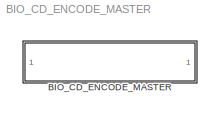
MODEL BIO_CD_ENCODE_MASTER
KIND library
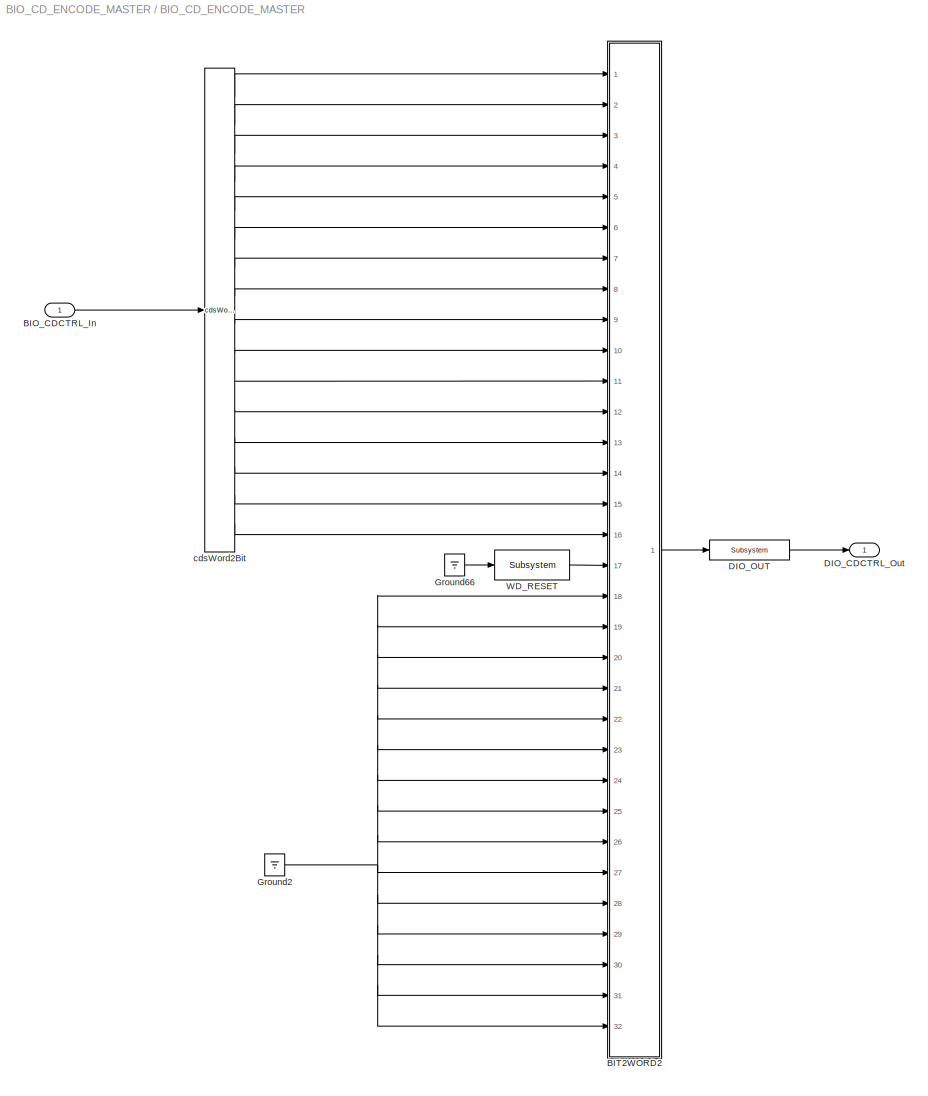
BLOCK [SubSystem] BIO_CD_ENCODE_MASTER
  Ports = [1, 1]
  RequestExecContextInheritance = off
  SID = 130
BLOCK [Inport] BIO_CD_ENCODE_MASTER/BIO_CDCTRL_In
  IconDisplay = Port number
  SID = 131
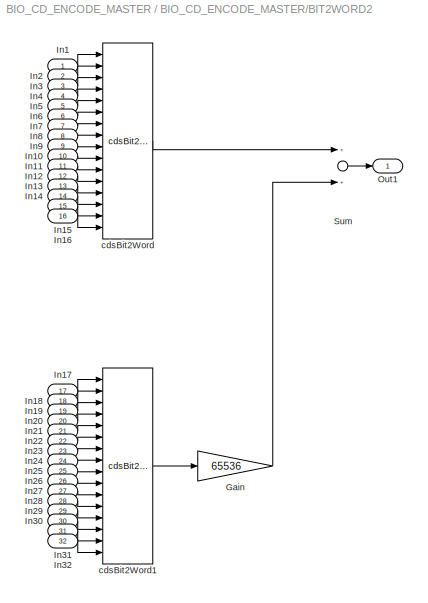
BLOCK [SubSystem] BIO_CD_ENCODE_MASTER/BIT2WORD2
  Ports = [32, 1]
  RequestExecContextInheritance = off
  SID = 1
BLOCK [Gain] BIO_CD_ENCODE_MASTER/BIT2WORD2/Gain
  Gain = 65536
  OutDataTypeStr = Inherit: Inherit via internal rule
  ParamDataTypeStr = Inherit: Inherit via internal rule
  SID = 34
  SaturateOnIntegerOverflow = off
BLOCK [Inport] BIO_CD_ENCODE_MASTER/BIT2WORD2/In1
  IconDisplay = Port number
  SID = 2
BLOCK [Inport] BIO_CD_ENCODE_MASTER/BIT2WORD2/In10
  IconDisplay = Port number
  Port = 10
  SID = 11
BLOCK [Inport] BIO_CD_ENCODE_MASTER/BIT2WORD2/In11
  IconDisplay = Port number
  Port = 11
  SID = 12
BLOCK [Inport] BIO_CD_ENCODE_MASTER/BIT2WORD2/In12
  IconDisplay = Port number
  Port = 12
  SID = 13
BLOCK [Inport] BIO_CD_ENCODE_MASTER/BIT2WORD2/In13
  IconDisplay = Port number
  Port = 13
  SID = 14
BLOCK [Inport] BIO_CD_ENCODE_MASTER/BIT2WORD2/In14
  IconDisplay = Port number
  Port = 14
  SID = 15
BLOCK [Inport] BIO_CD_ENCODE_MASTER/BIT2WORD2/In15
  IconDisplay = Port number
  Port = 15
  SID = 16
BLOCK [Inport] BIO_CD_ENCODE_MASTER/BIT2WORD2/In16
  IconDisplay = Port number
  Port = 16
  SID = 17
BLOCK [Inport] BIO_CD_ENCODE_MASTER/BIT2WORD2/In17
  IconDisplay = Port number
  Port = 17
  SID = 18
BLOCK [Inport] BIO_CD_ENCODE_MASTER/BIT2WORD2/In18
  IconDisplay = Port number
  Port = 18
  SID = 19
BLOCK [Inport] BIO_CD_ENCODE_MASTER/BIT2WORD2/In19
  IconDisplay = Port number
  Port = 19
  SID = 20
BLOCK [Inport] BIO_CD_ENCODE_MASTER/BIT2WORD2/In2
  IconDisplay = Port number
  Port = 2
  SID = 3
BLOCK [Inport] BIO_CD_ENCODE_MASTER/BIT2WORD2/In20
  IconDisplay = Port number
  Port = 20
  SID = 21
BLOCK [Inport] BIO_CD_ENCODE_MASTER/BIT2WORD2/In21
  IconDisplay = Port number
  Port = 21
  SID = 22
BLOCK [Inport] BIO_CD_ENCODE_MASTER/BIT2WORD2/In22
  IconDisplay = Port number
  Port = 22
  SID = 23
BLOCK [Inport] BIO_CD_ENCODE_MASTER/BIT2WORD2/In23
  IconDisplay = Port number
  Port = 23
  SID = 24
BLOCK [Inport] BIO_CD_ENCODE_MASTER/BIT2WORD2/In24
  IconDisplay = Port number
  Port = 24
  SID = 25
BLOCK [Inport] BIO_CD_ENCODE_MASTER/BIT2WORD2/In25
  IconDisplay = Port number
  Port = 25
  SID = 26
BLOCK [Inport] BIO_CD_ENCODE_MASTER/BIT2WORD2/In26
  IconDisplay = Port number
  Port = 26
  SID = 27
BLOCK [Inport] BIO_CD_ENCODE_MASTER/BIT2WORD2/In27
  IconDisplay = Port number
  Port = 27
  SID = 28
BLOCK [Inport] BIO_CD_ENCODE_MASTER/BIT2WORD2/In28
  IconDisplay = Port number
  Port = 28
  SID = 29
BLOCK [Inport] BIO_CD_ENCODE_MASTER/BIT2WORD2/In29
  IconDisplay = Port number
  Port = 29
  SID = 30
BLOCK [Inport] BIO_CD_ENCODE_MASTER/BIT2WORD2/In3
  IconDisplay = Port number
  Port = 3
  SID = 4
BLOCK [Inport] BIO_CD_ENCODE_MASTER/BIT2WORD2/In30
  IconDisplay = Port number
  Port = 30
  SID = 31
BLOCK [Inport] BIO_CD_ENCODE_MASTER/BIT2WORD2/In31
  IconDisplay = Port number
  Port = 31
  SID = 32
BLOCK [Inport] BIO_CD_ENCODE_MASTER/BIT2WORD2/In32
  IconDisplay = Port number
  Port = 32
  SID = 33
BLOCK [Inport] BIO_CD_ENCODE_MASTER/BIT2WORD2/In4
  IconDisplay = Port number
  Port = 4
  SID = 5
BLOCK [Inport] BIO_CD_ENCODE_MASTER/BIT2WORD2/In5
  IconDisplay = Port number
  Port = 5
  SID = 6
BLOCK [Inport] BIO_CD_ENCODE_MASTER/BIT2WORD2/In6
  IconDisplay = Port number
  Port = 6
  SID = 7
BLOCK [Inport] BIO_CD_ENCODE_MASTER/BIT2WORD2/In7
  IconDisplay = Port number
  Port = 7
  SID = 8
BLOCK [Inport] BIO_CD_ENCODE_MASTER/BIT2WORD2/In8
  IconDisplay = Port number
  Port = 8
  SID = 9
BLOCK [Inport] BIO_CD_ENCODE_MASTER/BIT2WORD2/In9
  IconDisplay = Port number
  Port = 9
  SID = 10
BLOCK [Outport] BIO_CD_ENCODE_MASTER/BIT2WORD2/Out1
  IconDisplay = Port number
  SID = 38
BLOCK [Sum] BIO_CD_ENCODE_MASTER/BIT2WORD2/Sum
  InputSameDT = off
  OutDataTypeStr = Inherit: Inherit via internal rule
  Ports = [2, 1]
  SID = 35
  SaturateOnIntegerOverflow = off
BLOCK [Reference] BIO_CD_ENCODE_MASTER/BIT2WORD2/cdsBit2Word  REF=cdsBit2Word/cdsBit2Word
  AttributesFormatString = %<Tag>
  Description = Forms single 16 bit integer from 16 0/1 inputs.
  Ports = [16, 1]
  SID = 36
  SourceBlock = cdsBit2Word/cdsBit2Word
  SourceType = SubSystem
  Tag = cdsBit2Word
BLOCK [Reference] BIO_CD_ENCODE_MASTER/BIT2WORD2/cdsBit2Word1  REF=cdsBit2Word/cdsBit2Word
  AttributesFormatString = %<Tag>
  Description = Forms single 16 bit integer from 16 0/1 inputs.
  Ports = [16, 1]
  SID = 37
  SourceBlock = cdsBit2Word/cdsBit2Word
  SourceType = SubSystem
  Tag = cdsBit2Word
BLOCK [Outport] BIO_CD_ENCODE_MASTER/DIO_CDCTRL_Out
  IconDisplay = Port number
  SID = 132
BLOCK [Reference] BIO_CD_ENCODE_MASTER/DIO_OUT  REF=cdsEpicsOut/Subsystem
  AttributesFormatString = %<Tag>
  Description = Purpose:                                          \nOutput a FE signal to an EPICS channel.           \n                                                  \nOperation:                                        \nTakes input value and passes it to EPICS record.  \n                                                  \nUsage:                                            \nName the part with the desired EPICS...<+14ch>
  Ports = [1, 1]
  SID = 39
  SourceBlock = cdsEpicsOut/Subsystem
  SourceType = SubSystem
  Tag = cdsEpicsOutput
BLOCK [Ground] BIO_CD_ENCODE_MASTER/Ground2
  SID = 40
BLOCK [Ground] BIO_CD_ENCODE_MASTER/Ground66
  SID = 41
BLOCK [Reference] BIO_CD_ENCODE_MASTER/WD_RESET  REF=cdsEpicsBinIn/Subsystem
  AttributesFormatString = %<Tag>
  Description = Purpose:                                                                            \nCreate an EPICS binary (0 or 1) input channel to the FE realtime controls.          \n                                                                                    \nOperation:                                                                          \nOutputs value from an EPICS ai record. Value is binary i...<+252ch>
  Ports = [1, 1]
  SID = 42
  SourceBlock = cdsEpicsBinIn/Subsystem
  SourceType = SubSystem
  Tag = cdsEpicsBinIn
BLOCK [Reference] BIO_CD_ENCODE_MASTER/cdsWord2Bit  REF=cdsWord2Bit/cdsWord2Bit
  AttributesFormatString = cdsWord2Bit
  Description = Generate 16 0/1 outputs from single 16-bit integer input
  Ports = [1, 16]
  SID = 43
  SourceBlock = cdsWord2Bit/cdsWord2Bit
  SourceType = SubSystem
  Tag = cdsWord2Bit
LINE BIO_CD_ENCODE_MASTER/BIO_CDCTRL_In:1 -> BIO_CD_ENCODE_MASTER/cdsWord2Bit:1
LINE BIO_CD_ENCODE_MASTER/BIT2WORD2/Gain:1 -> BIO_CD_ENCODE_MASTER/BIT2WORD2/Sum:2
LINE BIO_CD_ENCODE_MASTER/BIT2WORD2/In10:1 -> BIO_CD_ENCODE_MASTER/BIT2WORD2/cdsBit2Word:10
LINE BIO_CD_ENCODE_MASTER/BIT2WORD2/In11:1 -> BIO_CD_ENCODE_MASTER/BIT2WORD2/cdsBit2Word:11
LINE BIO_CD_ENCODE_MASTER/BIT2WORD2/In12:1 -> BIO_CD_ENCODE_MASTER/BIT2WORD2/cdsBit2Word:12
LINE BIO_CD_ENCODE_MASTER/BIT2WORD2/In13:1 -> BIO_CD_ENCODE_MASTER/BIT2WORD2/cdsBit2Word:13
LINE BIO_CD_ENCODE_MASTER/BIT2WORD2/In14:1 -> BIO_CD_ENCODE_MASTER/BIT2WORD2/cdsBit2Word:14
LINE BIO_CD_ENCODE_MASTER/BIT2WORD2/In15:1 -> BIO_CD_ENCODE_MASTER/BIT2WORD2/cdsBit2Word:15
LINE BIO_CD_ENCODE_MASTER/BIT2WORD2/In16:1 -> BIO_CD_ENCODE_MASTER/BIT2WORD2/cdsBit2Word:16
LINE BIO_CD_ENCODE_MASTER/BIT2WORD2/In17:1 -> BIO_CD_ENCODE_MASTER/BIT2WORD2/cdsBit2Word1:1
LINE BIO_CD_ENCODE_MASTER/BIT2WORD2/In18:1 -> BIO_CD_ENCODE_MASTER/BIT2WORD2/cdsBit2Word1:2
LINE BIO_CD_ENCODE_MASTER/BIT2WORD2/In19:1 -> BIO_CD_ENCODE_MASTER/BIT2WORD2/cdsBit2Word1:3
LINE BIO_CD_ENCODE_MASTER/BIT2WORD2/In1:1 -> BIO_CD_ENCODE_MASTER/BIT2WORD2/cdsBit2Word:1
LINE BIO_CD_ENCODE_MASTER/BIT2WORD2/In20:1 -> BIO_CD_ENCODE_MASTER/BIT2WORD2/cdsBit2Word1:4
LINE BIO_CD_ENCODE_MASTER/BIT2WORD2/In21:1 -> BIO_CD_ENCODE_MASTER/BIT2WORD2/cdsBit2Word1:5
LINE BIO_CD_ENCODE_MASTER/BIT2WORD2/In22:1 -> BIO_CD_ENCODE_MASTER/BIT2WORD2/cdsBit2Word1:6
LINE BIO_CD_ENCODE_MASTER/BIT2WORD2/In23:1 -> BIO_CD_ENCODE_MASTER/BIT2WORD2/cdsBit2Word1:7
LINE BIO_CD_ENCODE_MASTER/BIT2WORD2/In24:1 -> BIO_CD_ENCODE_MASTER/BIT2WORD2/cdsBit2Word1:8
LINE BIO_CD_ENCODE_MASTER/BIT2WORD2/In25:1 -> BIO_CD_ENCODE_MASTER/BIT2WORD2/cdsBit2Word1:9
LINE BIO_CD_ENCODE_MASTER/BIT2WORD2/In26:1 -> BIO_CD_ENCODE_MASTER/BIT2WORD2/cdsBit2Word1:10
LINE BIO_CD_ENCODE_MASTER/BIT2WORD2/In27:1 -> BIO_CD_ENCODE_MASTER/BIT2WORD2/cdsBit2Word1:11
LINE BIO_CD_ENCODE_MASTER/BIT2WORD2/In28:1 -> BIO_CD_ENCODE_MASTER/BIT2WORD2/cdsBit2Word1:12
LINE BIO_CD_ENCODE_MASTER/BIT2WORD2/In29:1 -> BIO_CD_ENCODE_MASTER/BIT2WORD2/cdsBit2Word1:13
LINE BIO_CD_ENCODE_MASTER/BIT2WORD2/In2:1 -> BIO_CD_ENCODE_MASTER/BIT2WORD2/cdsBit2Word:2
LINE BIO_CD_ENCODE_MASTER/BIT2WORD2/In30:1 -> BIO_CD_ENCODE_MASTER/BIT2WORD2/cdsBit2Word1:14
LINE BIO_CD_ENCODE_MASTER/BIT2WORD2/In31:1 -> BIO_CD_ENCODE_MASTER/BIT2WORD2/cdsBit2Word1:15
LINE BIO_CD_ENCODE_MASTER/BIT2WORD2/In32:1 -> BIO_CD_ENCODE_MASTER/BIT2WORD2/cdsBit2Word1:16
LINE BIO_CD_ENCODE_MASTER/BIT2WORD2/In3:1 -> BIO_CD_ENCODE_MASTER/BIT2WORD2/cdsBit2Word:3
LINE BIO_CD_ENCODE_MASTER/BIT2WORD2/In4:1 -> BIO_CD_ENCODE_MASTER/BIT2WORD2/cdsBit2Word:4
LINE BIO_CD_ENCODE_MASTER/BIT2WORD2/In5:1 -> BIO_CD_ENCODE_MASTER/BIT2WORD2/cdsBit2Word:5
LINE BIO_CD_ENCODE_MASTER/BIT2WORD2/In6:1 -> BIO_CD_ENCODE_MASTER/BIT2WORD2/cdsBit2Word:6
LINE BIO_CD_ENCODE_MASTER/BIT2WORD2/In7:1 -> BIO_CD_ENCODE_MASTER/BIT2WORD2/cdsBit2Word:7
LINE BIO_CD_ENCODE_MASTER/BIT2WORD2/In8:1 -> BIO_CD_ENCODE_MASTER/BIT2WORD2/cdsBit2Word:8
LINE BIO_CD_ENCODE_MASTER/BIT2WORD2/In9:1 -> BIO_CD_ENCODE_MASTER/BIT2WORD2/cdsBit2Word:9
LINE BIO_CD_ENCODE_MASTER/BIT2WORD2/Sum:1 -> BIO_CD_ENCODE_MASTER/BIT2WORD2/Out1:1
LINE BIO_CD_ENCODE_MASTER/BIT2WORD2/cdsBit2Word1:1 -> BIO_CD_ENCODE_MASTER/BIT2WORD2/Gain:1
LINE BIO_CD_ENCODE_MASTER/BIT2WORD2/cdsBit2Word:1 -> BIO_CD_ENCODE_MASTER/BIT2WORD2/Sum:1
LINE BIO_CD_ENCODE_MASTER/BIT2WORD2:1 -> BIO_CD_ENCODE_MASTER/DIO_OUT:1
LINE BIO_CD_ENCODE_MASTER/DIO_OUT:1 -> BIO_CD_ENCODE_MASTER/DIO_CDCTRL_Out:1
NET BIO_CD_ENCODE_MASTER/Ground2:1 -> BIO_CD_ENCODE_MASTER/BIT2WORD2:18, BIO_CD_ENCODE_MASTER/BIT2WORD2:19, BIO_CD_ENCODE_MASTER/BIT2WORD2:20, BIO_CD_ENCODE_MASTER/BIT2WORD2:21, BIO_CD_ENCODE_MASTER/BIT2WORD2:22, BIO_CD_ENCODE_MASTER/BIT2WORD2:23, BIO_CD_ENCODE_MASTER/BIT2WORD2:24, BIO_CD_ENCODE_MASTER/BIT2WORD2:25, BIO_CD_ENCODE_MASTER/BIT2WORD2:26, BIO_CD_ENCODE_MASTER/BIT2WORD2:27, BIO_CD_ENCODE_MASTER/BIT2WORD2:28, BIO_CD_ENCODE_MASTER/BIT2WORD2:29, BIO_CD_ENCODE_MASTER/BIT2WORD2:30, BIO_CD_ENCODE_MASTER/BIT2WORD2:31, BIO_CD_ENCODE_MASTER/BIT2WORD2:32
LINE BIO_CD_ENCODE_MASTER/Ground66:1 -> BIO_CD_ENCODE_MASTER/WD_RESET:1
LINE BIO_CD_ENCODE_MASTER/WD_RESET:1 -> BIO_CD_ENCODE_MASTER/BIT2WORD2:17
LINE BIO_CD_ENCODE_MASTER/cdsWord2Bit:1 -> BIO_CD_ENCODE_MASTER/BIT2WORD2:1
LINE BIO_CD_ENCODE_MASTER/cdsWord2Bit:10 -> BIO_CD_ENCODE_MASTER/BIT2WORD2:10
LINE BIO_CD_ENCODE_MASTER/cdsWord2Bit:11 -> BIO_CD_ENCODE_MASTER/BIT2WORD2:11
LINE BIO_CD_ENCODE_MASTER/cdsWord2Bit:12 -> BIO_CD_ENCODE_MASTER/BIT2WORD2:12
LINE BIO_CD_ENCODE_MASTER/cdsWord2Bit:13 -> BIO_CD_ENCODE_MASTER/BIT2WORD2:13
LINE BIO_CD_ENCODE_MASTER/cdsWord2Bit:14 -> BIO_CD_ENCODE_MASTER/BIT2WORD2:14
LINE BIO_CD_ENCODE_MASTER/cdsWord2Bit:15 -> BIO_CD_ENCODE_MASTER/BIT2WORD2:15
LINE BIO_CD_ENCODE_MASTER/cdsWord2Bit:16 -> BIO_CD_ENCODE_MASTER/BIT2WORD2:16
LINE BIO_CD_ENCODE_MASTER/cdsWord2Bit:2 -> BIO_CD_ENCODE_MASTER/BIT2WORD2:2
LINE BIO_CD_ENCODE_MASTER/cdsWord2Bit:3 -> BIO_CD_ENCODE_MASTER/BIT2WORD2:3
LINE BIO_CD_ENCODE_MASTER/cdsWord2Bit:4 -> BIO_CD_ENCODE_MASTER/BIT2WORD2:4
LINE BIO_CD_ENCODE_MASTER/cdsWord2Bit:5 -> BIO_CD_ENCODE_MASTER/BIT2WORD2:5
LINE BIO_CD_ENCODE_MASTER/cdsWord2Bit:6 -> BIO_CD_ENCODE_MASTER/BIT2WORD2:6
LINE BIO_CD_ENCODE_MASTER/cdsWord2Bit:7 -> BIO_CD_ENCODE_MASTER/BIT2WORD2:7
LINE BIO_CD_ENCODE_MASTER/cdsWord2Bit:8 -> BIO_CD_ENCODE_MASTER/BIT2WORD2:8
LINE BIO_CD_ENCODE_MASTER/cdsWord2Bit:9 -> BIO_CD_ENCODE_MASTER/BIT2WORD2:9
note: NET lines group one-source signal fan-out (src -> all destinations, sorted); 1:1 wires keep LINE
